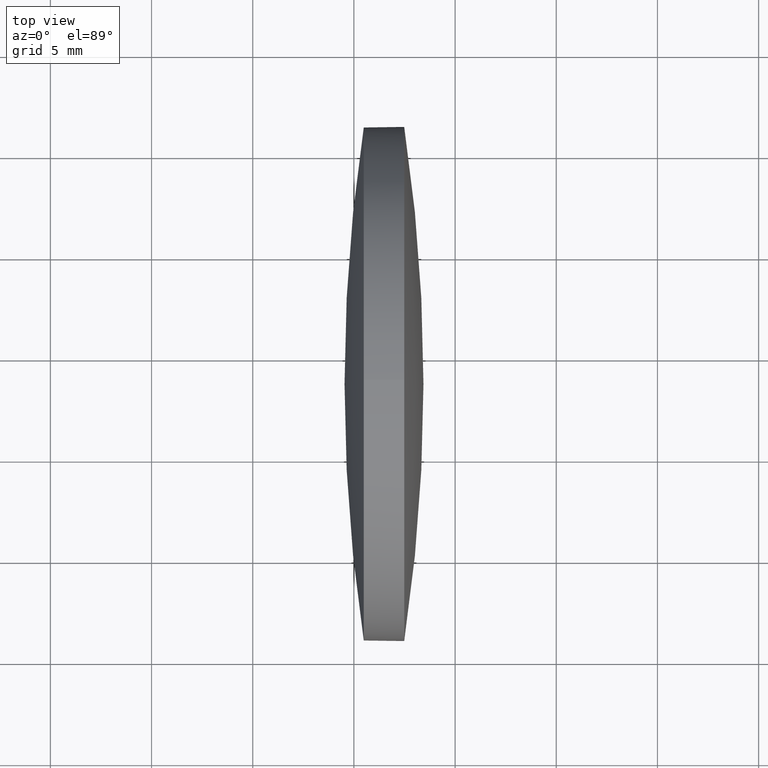
[diagram: clean part render]
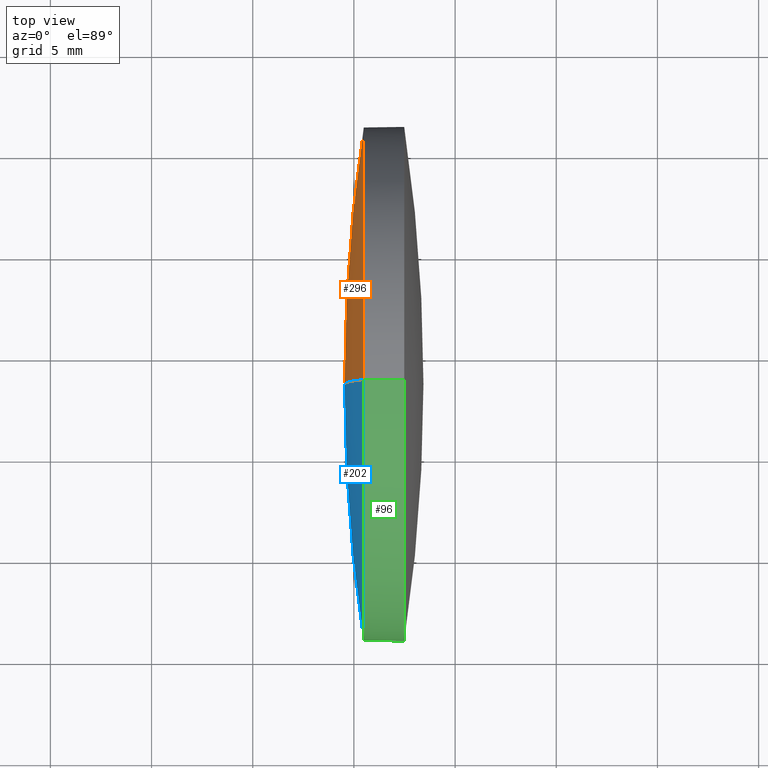
[diagram: same view with three faces highlighted in distinct colors, each labeled with its STEP entity id]
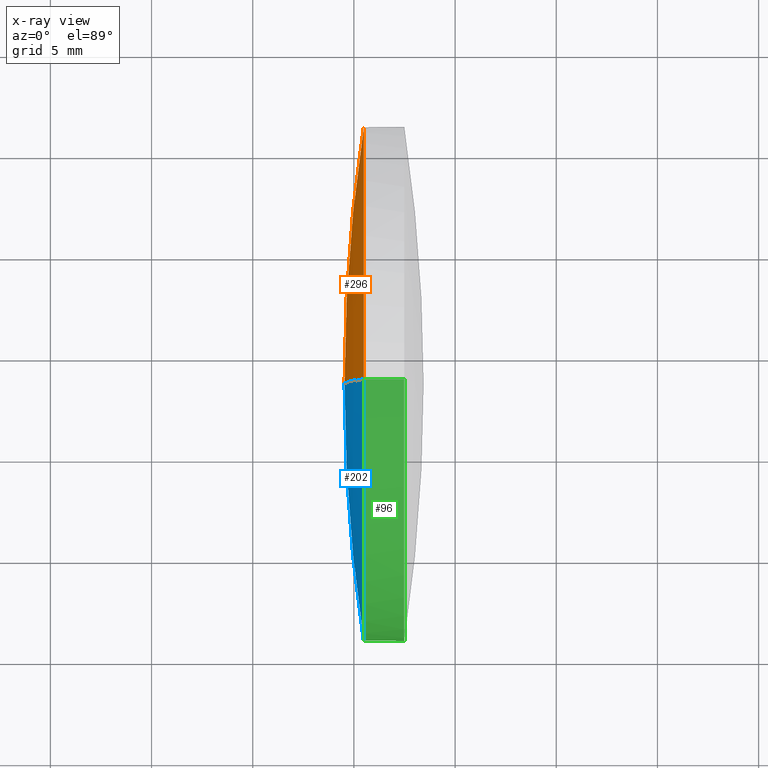
[diagram: x-ray of the same camera — body ghosted, the three highlighted faces saturated]
A machine part, top view with three faces highlighted in distinct colors.
The next image is the same camera in x-ray (body ghosted, the three faces saturated) — at least one of them is partly hidden behind the body in this view.
Their STEP definitions:

[orange] entity #296 — the highlighted toroidal blend (fillet) surface has major radius 0.0042 mm and minor (blend) radius 85.3638 mm.
#3 = DIRECTION ( 'NONE',  ( -1.000000000000000000, -0.0000000000000000000, -0.0000000000000000000 ) ) ;
#15 = AXIS2_PLACEMENT_3D ( 'NONE', #44, #306, #134 ) ;
#21 = DIRECTION ( 'NONE',  ( 0.0000000000000000000, 0.0000000000000000000, -1.000000000000000000 ) ) ;
#23 = DIRECTION ( 'NONE',  ( 0.0000000000000000000, -1.625721998753305600E-016, 1.000000000000000000 ) ) ;
#34 = VERTEX_POINT ( 'NONE', #223 ) ;
#36 = VERTEX_POINT ( 'NONE', #150 ) ;
#44 = CARTESIAN_POINT ( 'NONE',  ( 169.9004558007695200, 48.63209213917348000, 0.0000000000000000000 ) ) ;
#56 = FACE_OUTER_BOUND ( 'NONE', #242, .T. ) ;
#76 = CARTESIAN_POINT ( 'NONE',  ( 169.9004558007695200, 48.63209213917348000, -0.004232136107736039800 ) ) ;
#78 = ORIENTED_EDGE ( 'NONE', *, *, #101, .T. ) ;
#93 = EDGE_CURVE ( 'NONE', #198, #36, #290, .T. ) ;
#101 = EDGE_CURVE ( 'NONE', #198, #34, #196, .T. ) ;
#113 = TOROIDAL_SURFACE ( 'NONE', #15, -0.004232136107736039800, 85.36384337824497900 ) ;
#115 = AXIS2_PLACEMENT_3D ( 'NONE', #230, #121, #23 ) ;
#120 = AXIS2_PLACEMENT_3D ( 'NONE', #199, #3, #175 ) ;
#121 = DIRECTION ( 'NONE',  ( -0.0000000000000000000, 1.000000000000000000, 1.224646799147353200E-016 ) ) ;
#134 = DIRECTION ( 'NONE',  ( 0.0000000000000000000, 0.0000000000000000000, 1.000000000000000000 ) ) ;
#150 = CARTESIAN_POINT ( 'NONE',  ( 84.53661252743413000, 48.63209213917348000, 0.0000000000000000000 ) ) ;
#156 = CARTESIAN_POINT ( 'NONE',  ( 85.48662822818782600, 48.63209213917348000, 12.69582577131883200 ) ) ;
#160 = ORIENTED_EDGE ( 'NONE', *, *, #93, .F. ) ;
#172 = EDGE_CURVE ( 'NONE', #34, #36, #218, .T. ) ;
#175 = DIRECTION ( 'NONE',  ( 0.0000000000000000000, 0.0000000000000000000, 1.000000000000000000 ) ) ;
#196 = CIRCLE ( 'NONE', #120, 12.69582577131885000 ) ;
#198 = VERTEX_POINT ( 'NONE', #156 ) ;
#199 = CARTESIAN_POINT ( 'NONE',  ( 85.48662822818782600, 48.63209213917348000, 0.0000000000000000000 ) ) ;
#218 = CIRCLE ( 'NONE', #115, 85.36384337824497900 ) ;
#223 = CARTESIAN_POINT ( 'NONE',  ( 85.48662822818782600, 48.63209213917348000, -12.69582577131883200 ) ) ;
#230 = CARTESIAN_POINT ( 'NONE',  ( 169.9004558007695200, 48.63209213917348000, 0.004232136107736039800 ) ) ;
#242 = EDGE_LOOP ( 'NONE', ( #78, #266, #160 ) ) ;
#247 = DIRECTION ( 'NONE',  ( 0.0000000000000000000, -1.000000000000000000, 0.0000000000000000000 ) ) ;
#266 = ORIENTED_EDGE ( 'NONE', *, *, #172, .T. ) ;
#290 = CIRCLE ( 'NONE', #295, 85.36384337824497900 ) ;
#295 = AXIS2_PLACEMENT_3D ( 'NONE', #76, #247, #21 ) ;
#296 = ADVANCED_FACE ( 'NONE', ( #56 ), #113, .T. ) ;
#306 = DIRECTION ( 'NONE',  ( -1.000000000000000000, -0.0000000000000000000, -0.0000000000000000000 ) ) ;

[blue] entity #202 — the highlighted toroidal blend (fillet) surface has major radius 0.0042 mm and minor (blend) radius 85.3638 mm.
#21 = DIRECTION ( 'NONE',  ( 0.0000000000000000000, 0.0000000000000000000, -1.000000000000000000 ) ) ;
#22 = CARTESIAN_POINT ( 'NONE',  ( 169.9004558007695200, 48.63209213917348000, 0.0000000000000000000 ) ) ;
#23 = DIRECTION ( 'NONE',  ( 0.0000000000000000000, -1.625721998753305600E-016, 1.000000000000000000 ) ) ;
#24 = ORIENTED_EDGE ( 'NONE', *, *, #93, .T. ) ;
#34 = VERTEX_POINT ( 'NONE', #223 ) ;
#36 = VERTEX_POINT ( 'NONE', #150 ) ;
#46 = FACE_OUTER_BOUND ( 'NONE', #258, .T. ) ;
#50 = DIRECTION ( 'NONE',  ( -1.000000000000000000, -0.0000000000000000000, -0.0000000000000000000 ) ) ;
#62 = CIRCLE ( 'NONE', #170, 12.69582577131885000 ) ;
#76 = CARTESIAN_POINT ( 'NONE',  ( 169.9004558007695200, 48.63209213917348000, -0.004232136107736039800 ) ) ;
#93 = EDGE_CURVE ( 'NONE', #198, #36, #290, .T. ) ;
#115 = AXIS2_PLACEMENT_3D ( 'NONE', #230, #121, #23 ) ;
#121 = DIRECTION ( 'NONE',  ( -0.0000000000000000000, 1.000000000000000000, 1.224646799147353200E-016 ) ) ;
#122 = CARTESIAN_POINT ( 'NONE',  ( 85.48662822818782600, 48.63209213917348000, 0.0000000000000000000 ) ) ;
#128 = DIRECTION ( 'NONE',  ( 0.0000000000000000000, 0.0000000000000000000, 1.000000000000000000 ) ) ;
#149 = TOROIDAL_SURFACE ( 'NONE', #314, -0.004232136107736039800, 85.36384337824497900 ) ;
#150 = CARTESIAN_POINT ( 'NONE',  ( 84.53661252743413000, 48.63209213917348000, 0.0000000000000000000 ) ) ;
#156 = CARTESIAN_POINT ( 'NONE',  ( 85.48662822818782600, 48.63209213917348000, 12.69582577131883200 ) ) ;
#170 = AXIS2_PLACEMENT_3D ( 'NONE', #122, #50, #128 ) ;
#172 = EDGE_CURVE ( 'NONE', #34, #36, #218, .T. ) ;
#186 = ORIENTED_EDGE ( 'NONE', *, *, #189, .T. ) ;
#189 = EDGE_CURVE ( 'NONE', #34, #198, #62, .T. ) ;
#198 = VERTEX_POINT ( 'NONE', #156 ) ;
#202 = ADVANCED_FACE ( 'NONE', ( #46 ), #149, .T. ) ;
#211 = ORIENTED_EDGE ( 'NONE', *, *, #172, .F. ) ;
#218 = CIRCLE ( 'NONE', #115, 85.36384337824497900 ) ;
#223 = CARTESIAN_POINT ( 'NONE',  ( 85.48662822818782600, 48.63209213917348000, -12.69582577131883200 ) ) ;
#230 = CARTESIAN_POINT ( 'NONE',  ( 169.9004558007695200, 48.63209213917348000, 0.004232136107736039800 ) ) ;
#247 = DIRECTION ( 'NONE',  ( 0.0000000000000000000, -1.000000000000000000, 0.0000000000000000000 ) ) ;
#252 = DIRECTION ( 'NONE',  ( 0.0000000000000000000, 0.0000000000000000000, 1.000000000000000000 ) ) ;
#258 = EDGE_LOOP ( 'NONE', ( #211, #186, #24 ) ) ;
#290 = CIRCLE ( 'NONE', #295, 85.36384337824497900 ) ;
#295 = AXIS2_PLACEMENT_3D ( 'NONE', #76, #247, #21 ) ;
#304 = DIRECTION ( 'NONE',  ( -1.000000000000000000, -0.0000000000000000000, -0.0000000000000000000 ) ) ;
#314 = AXIS2_PLACEMENT_3D ( 'NONE', #22, #304, #252 ) ;

[green] entity #96 — the highlighted conical surface has half-angle 0.239 deg.
#1 = AXIS2_PLACEMENT_3D ( 'NONE', #20, #197, #127 ) ;
#2 = CARTESIAN_POINT ( 'NONE',  ( 87.48661080392687900, 48.63209213917348000, -12.70417422867516100 ) ) ;
#16 = LINE ( 'NONE', #274, #141 ) ;
#18 = DIRECTION ( 'NONE',  ( 0.9999912878695206300, 5.111955789612099800E-019, 0.004174228678155401900 ) ) ;
#20 = CARTESIAN_POINT ( 'NONE',  ( 87.48661080392687900, 48.63209213917348000, 0.0000000000000000000 ) ) ;
#34 = VERTEX_POINT ( 'NONE', #223 ) ;
#48 = ORIENTED_EDGE ( 'NONE', *, *, #85, .T. ) ;
#49 = CARTESIAN_POINT ( 'NONE',  ( 87.48661080392687900, 48.63209213917348000, 0.0000000000000000000 ) ) ;
#50 = DIRECTION ( 'NONE',  ( -1.000000000000000000, -0.0000000000000000000, -0.0000000000000000000 ) ) ;
#62 = CIRCLE ( 'NONE', #170, 12.69582577131885000 ) ;
#85 = EDGE_CURVE ( 'NONE', #235, #139, #294, .T. ) ;
#96 = ADVANCED_FACE ( 'NONE', ( #117 ), #229, .T. ) ;
#117 = FACE_OUTER_BOUND ( 'NONE', #214, .T. ) ;
#122 = CARTESIAN_POINT ( 'NONE',  ( 85.48662822818782600, 48.63209213917348000, 0.0000000000000000000 ) ) ;
#124 = CARTESIAN_POINT ( 'NONE',  ( 87.48661080392689400, 35.92791791049834400, 0.0000000000000000000 ) ) ;
#127 = DIRECTION ( 'NONE',  ( 0.0000000000000000000, 0.0000000000000000000, 1.000000000000000000 ) ) ;
#128 = DIRECTION ( 'NONE',  ( 0.0000000000000000000, 0.0000000000000000000, 1.000000000000000000 ) ) ;
#136 = VECTOR ( 'NONE', #322, 1000.000000000000000 ) ;
#139 = VERTEX_POINT ( 'NONE', #153 ) ;
#141 = VECTOR ( 'NONE', #18, 1000.000000000000000 ) ;
#146 = EDGE_CURVE ( 'NONE', #34, #272, #268, .T. ) ;
#148 = ORIENTED_EDGE ( 'NONE', *, *, #288, .F. ) ;
#153 = CARTESIAN_POINT ( 'NONE',  ( 87.48661080392687900, 48.63209213917348000, 12.70417422867516100 ) ) ;
#155 = CARTESIAN_POINT ( 'NONE',  ( 85.48662822818782600, 48.63209213917348000, -12.69582577131885000 ) ) ;
#156 = CARTESIAN_POINT ( 'NONE',  ( 85.48662822818782600, 48.63209213917348000, 12.69582577131883200 ) ) ;
#170 = AXIS2_PLACEMENT_3D ( 'NONE', #122, #50, #128 ) ;
#176 = DIRECTION ( 'NONE',  ( 0.0000000000000000000, 0.0000000000000000000, 1.000000000000000000 ) ) ;
#179 = ORIENTED_EDGE ( 'NONE', *, *, #224, .T. ) ;
#189 = EDGE_CURVE ( 'NONE', #34, #198, #62, .T. ) ;
#191 = AXIS2_PLACEMENT_3D ( 'NONE', #226, #278, #324 ) ;
#197 = DIRECTION ( 'NONE',  ( -1.000000000000000000, -0.0000000000000000000, -0.0000000000000000000 ) ) ;
#198 = VERTEX_POINT ( 'NONE', #156 ) ;
#214 = EDGE_LOOP ( 'NONE', ( #148, #225, #220, #179, #48 ) ) ;
#220 = ORIENTED_EDGE ( 'NONE', *, *, #146, .T. ) ;
#223 = CARTESIAN_POINT ( 'NONE',  ( 85.48662822818782600, 48.63209213917348000, -12.69582577131883200 ) ) ;
#224 = EDGE_CURVE ( 'NONE', #272, #235, #313, .T. ) ;
#225 = ORIENTED_EDGE ( 'NONE', *, *, #189, .F. ) ;
#226 = CARTESIAN_POINT ( 'NONE',  ( 85.48662822818782600, 48.63209213917348000, 0.0000000000000000000 ) ) ;
#229 = CONICAL_SURFACE ( 'NONE', #191, 12.69582577131885000, 0.004174240800339277600 ) ;
#235 = VERTEX_POINT ( 'NONE', #124 ) ;
#268 = LINE ( 'NONE', #155, #136 ) ;
#272 = VERTEX_POINT ( 'NONE', #2 ) ;
#274 = CARTESIAN_POINT ( 'NONE',  ( 85.48662822818782600, 48.63209213917348000, 12.69582577131885000 ) ) ;
#278 = DIRECTION ( 'NONE',  ( 1.000000000000000000, 0.0000000000000000000, 0.0000000000000000000 ) ) ;
#288 = EDGE_CURVE ( 'NONE', #198, #139, #16, .T. ) ;
#294 = CIRCLE ( 'NONE', #320, 12.70417422867516100 ) ;
#300 = DIRECTION ( 'NONE',  ( -1.000000000000000000, -0.0000000000000000000, -0.0000000000000000000 ) ) ;
#313 = CIRCLE ( 'NONE', #1, 12.70417422867516100 ) ;
#320 = AXIS2_PLACEMENT_3D ( 'NONE', #49, #300, #176 ) ;
#322 = DIRECTION ( 'NONE',  ( 0.9999912878695206300, 0.0000000000000000000, -0.004174228678155401900 ) ) ;
#324 = DIRECTION ( 'NONE',  ( 0.0000000000000000000, 0.0000000000000000000, -1.000000000000000000 ) ) ;